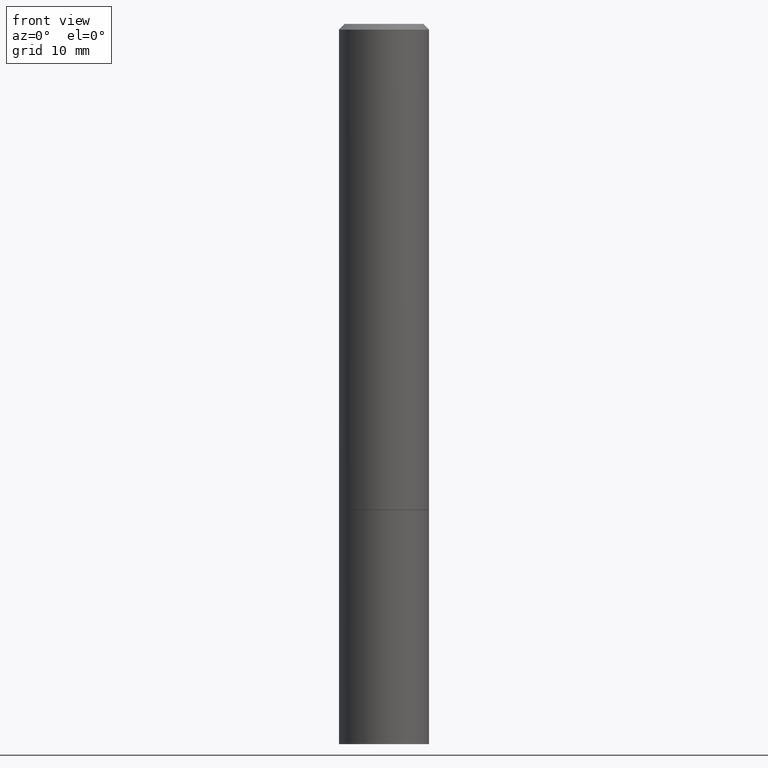
[diagram: clean part render]
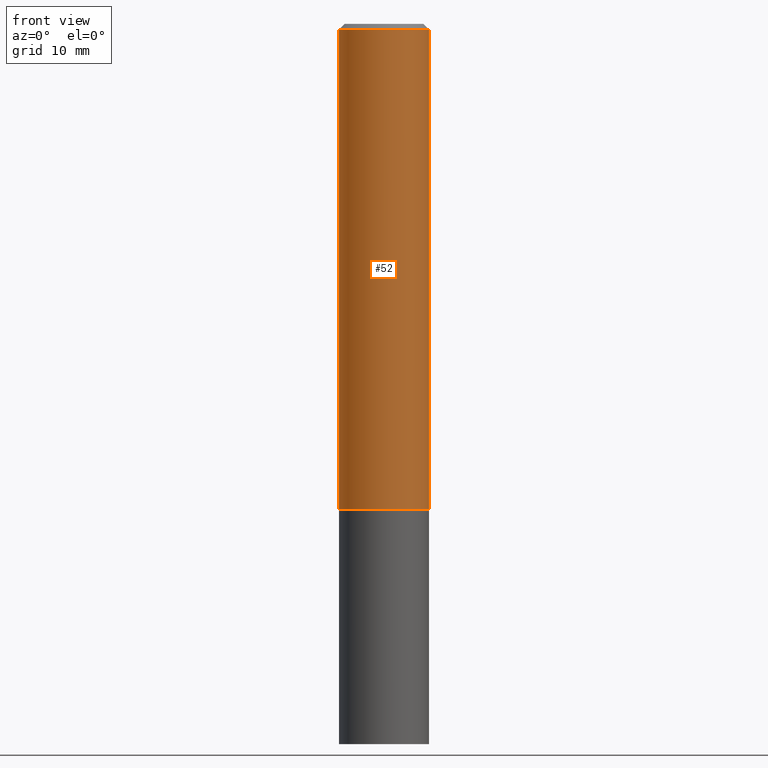
[diagram: same view with one face highlighted and labeled with its STEP entity id]
A machine part, front view. The second image highlights one B-rep face of the part: STEP entity #52.
In plain terms, the highlighted cylindrical surface (partial cylindrical patch) has radius 3.9687 mm, axis along (-0, 0, 1).
Its self-contained STEP definition (entity closure, byte-faithful):
#7 = CARTESIAN_POINT ( 'NONE',  ( -0.1562499999999999167, 1.110223024625155949E-15, -7.685836078523285555E-30 ) ) ;
#8 = VECTOR ( 'NONE', #37, 39.37007874015748143 ) ;
#12 = CARTESIAN_POINT ( 'NONE',  ( 0.1562499999999999167, -1.091087918388478385E-15, 7.619026212181144772E-30 ) ) ;
#21 = ORIENTED_EDGE ( 'NONE', *, *, #246, .T. ) ;
#27 = CARTESIAN_POINT ( 'NONE',  ( 0.1562500000000000000, -6.979471196347444214E-15, -1.686499999999999888 ) ) ;
#37 = DIRECTION ( 'NONE',  ( -2.445468806185136877E-29, 3.491481338843145188E-15, 1.000000000000000000 ) ) ;
#43 = AXIS2_PLACEMENT_3D ( 'NONE', #223, #90, #58 ) ;
#47 = VERTEX_POINT ( 'NONE', #113 ) ;
#52 = ADVANCED_FACE ( 'NONE', ( #274 ), #220, .T. ) ;
#55 = ORIENTED_EDGE ( 'NONE', *, *, #208, .F. ) ;
#58 = DIRECTION ( 'NONE',  ( 1.000000000000000000, -6.982962677686265133E-15, 4.876176775795935232E-29 ) ) ;
#68 = EDGE_CURVE ( 'NONE', #243, #72, #308, .T. ) ;
#72 = VERTEX_POINT ( 'NONE', #27 ) ;
#80 = VECTOR ( 'NONE', #319, 39.37007874015748143 ) ;
#90 = DIRECTION ( 'NONE',  ( -2.445468806185136597E-29, 3.491481338843145583E-15, 1.000000000000000000 ) ) ;
#95 = AXIS2_PLACEMENT_3D ( 'NONE', #323, #269, #272 ) ;
#113 = CARTESIAN_POINT ( 'NONE',  ( -0.1562499999999998057, 1.021258291611614692E-15, -0.02000000000000003511 ) ) ;
#114 = ORIENTED_EDGE ( 'NONE', *, *, #68, .T. ) ;
#123 = DIRECTION ( 'NONE',  ( 1.000000000000000000, -6.982962677686269077E-15, 0.000000000000000000 ) ) ;
#131 = LINE ( 'NONE', #12, #8 ) ;
#140 = AXIS2_PLACEMENT_3D ( 'NONE', #280, #224, #123 ) ;
#208 = EDGE_CURVE ( 'NONE', #47, #278, #244, .T. ) ;
#220 = CYLINDRICAL_SURFACE ( 'NONE', #43, 0.1562499999999999167 ) ;
#223 = CARTESIAN_POINT ( 'NONE',  ( 0.000000000000000000, 0.000000000000000000, 0.000000000000000000 ) ) ;
#224 = DIRECTION ( 'NONE',  ( -2.445468806185136597E-29, 3.491481338843145583E-15, 1.000000000000000000 ) ) ;
#243 = VERTEX_POINT ( 'NONE', #342 ) ;
#244 = CIRCLE ( 'NONE', #95, 0.1562499999999998057 ) ;
#246 = EDGE_CURVE ( 'NONE', #72, #278, #131, .T. ) ;
#252 = ORIENTED_EDGE ( 'NONE', *, *, #351, .F. ) ;
#263 = LINE ( 'NONE', #7, #80 ) ;
#269 = DIRECTION ( 'NONE',  ( -2.445468806185136597E-29, 3.491481338843145583E-15, 1.000000000000000000 ) ) ;
#272 = DIRECTION ( 'NONE',  ( 1.000000000000000000, -6.982962677686265133E-15, 0.000000000000000000 ) ) ;
#274 = FACE_OUTER_BOUND ( 'NONE', #335, .T. ) ;
#278 = VERTEX_POINT ( 'NONE', #292 ) ;
#280 = CARTESIAN_POINT ( 'NONE',  ( 4.124283141631232404E-29, -5.888383277958965040E-15, -1.686499999999999888 ) ) ;
#292 = CARTESIAN_POINT ( 'NONE',  ( 0.1562499999999998057, -1.141782438928663330E-15, -0.02000000000000003511 ) ) ;
#308 = CIRCLE ( 'NONE', #140, 0.1562500000000000000 ) ;
#319 = DIRECTION ( 'NONE',  ( -2.445468806185136877E-29, 3.491481338843145188E-15, 1.000000000000000000 ) ) ;
#323 = CARTESIAN_POINT ( 'NONE',  ( 4.890937612370281041E-31, -6.982962677686302702E-17, -0.02000000000000003511 ) ) ;
#335 = EDGE_LOOP ( 'NONE', ( #252, #114, #21, #55 ) ) ;
#342 = CARTESIAN_POINT ( 'NONE',  ( -0.1562500000000000000, -1.868883427742755657E-15, -1.686499999999999888 ) ) ;
#351 = EDGE_CURVE ( 'NONE', #243, #47, #263, .T. ) ;